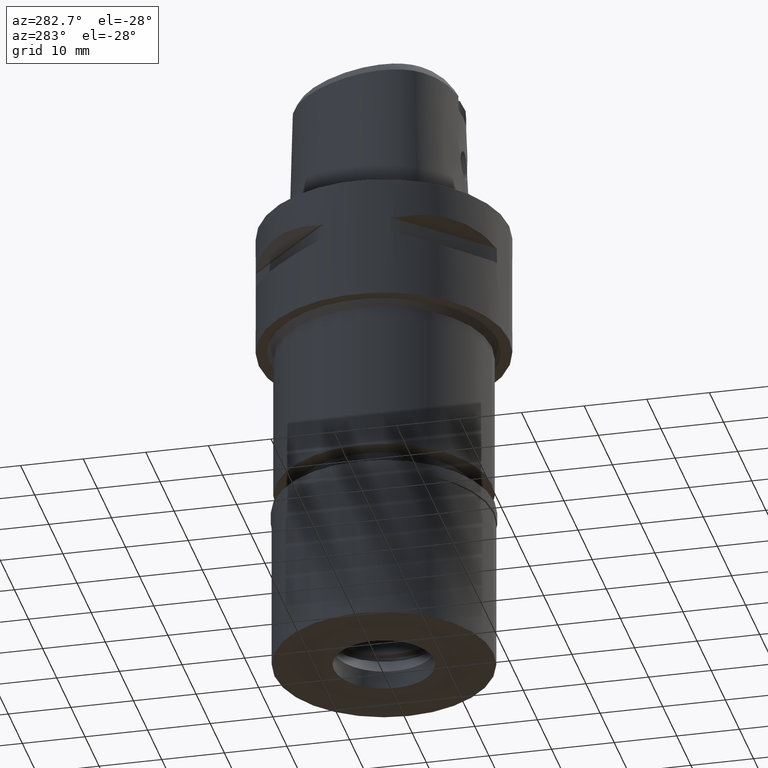
[diagram: clean part render]
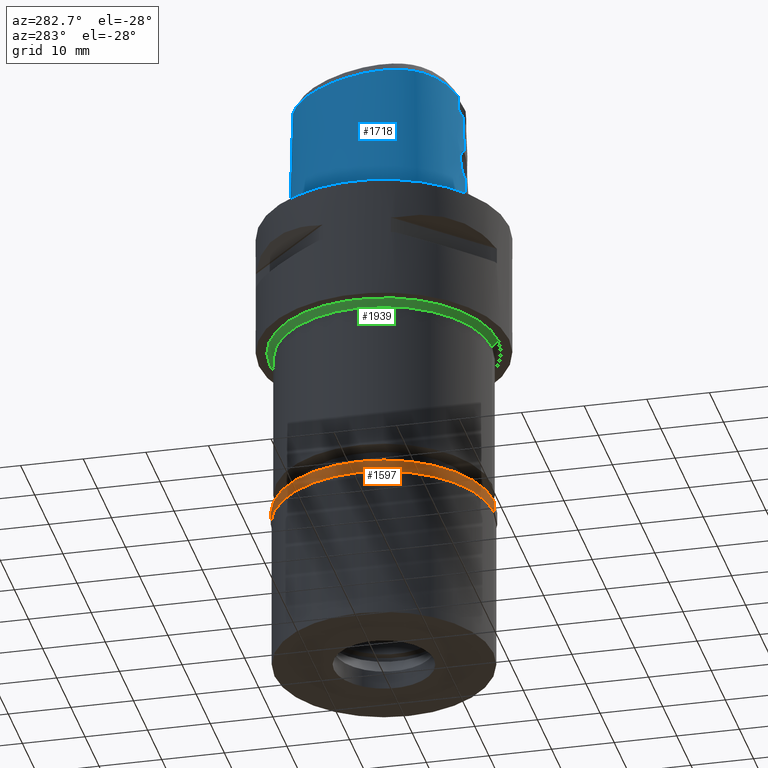
[diagram: same view with three faces highlighted in distinct colors, each labeled with its STEP entity id]
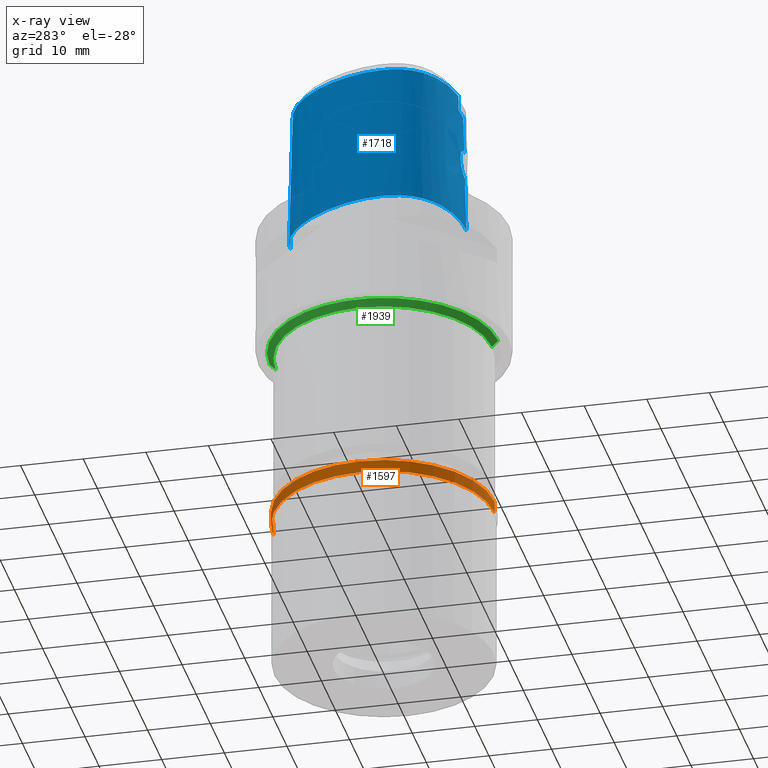
[diagram: x-ray of the same camera — body ghosted, the three highlighted faces saturated]
A machine part, auxiliary view with three faces highlighted in distinct colors.
The next image is the same camera in x-ray (body ghosted, the three faces saturated) — at least one of them is partly hidden behind the body in this view.
Their STEP definitions:

[orange] entity #1597 — the highlighted cylindrical surface (partial cylindrical patch) has radius 17.65 mm, axis along (0, 0, -1).
#65 = CARTESIAN_POINT ( 'NONE',  ( 0.0000000000000000000, 17.64999999999999858, 0.0000000000000000000 ) ) ;
#68 = LINE ( 'NONE', #2964, #1794 ) ;
#332 = EDGE_CURVE ( 'NONE', #3182, #1446, #68, .T. ) ;
#387 = DIRECTION ( 'NONE',  ( 0.0000000000000000000, 0.0000000000000000000, -1.000000000000000000 ) ) ;
#414 = ORIENTED_EDGE ( 'NONE', *, *, #4369, .T. ) ;
#703 = ORIENTED_EDGE ( 'NONE', *, *, #3760, .F. ) ;
#973 = CARTESIAN_POINT ( 'NONE',  ( 0.0000000000000000000, 0.0000000000000000000, -1.949999999999999956 ) ) ;
#1031 = CYLINDRICAL_SURFACE ( 'NONE', #2869, 17.64999999999999858 ) ;
#1371 = CARTESIAN_POINT ( 'NONE',  ( 0.0000000000000000000, -17.64999999999999858, 0.0000000000000000000 ) ) ;
#1412 = CARTESIAN_POINT ( 'NONE',  ( 0.0000000000000000000, -17.64999999999999858, -1.949999999999999956 ) ) ;
#1446 = VERTEX_POINT ( 'NONE', #3290 ) ;
#1473 = VERTEX_POINT ( 'NONE', #1412 ) ;
#1502 = CIRCLE ( 'NONE', #3487, 17.64999999999999858 ) ;
#1531 = AXIS2_PLACEMENT_3D ( 'NONE', #973, #3576, #1768 ) ;
#1597 = ADVANCED_FACE ( 'NONE', ( #4317 ), #1031, .T. ) ;
#1602 = CARTESIAN_POINT ( 'NONE',  ( 0.0000000000000000000, 0.0000000000000000000, 0.0000000000000000000 ) ) ;
#1768 = DIRECTION ( 'NONE',  ( 0.0000000000000000000, 1.000000000000000000, 0.0000000000000000000 ) ) ;
#1793 = CARTESIAN_POINT ( 'NONE',  ( 0.0000000000000000000, 0.0000000000000000000, 0.0000000000000000000 ) ) ;
#1794 = VECTOR ( 'NONE', #387, 1000.000000000000000 ) ;
#2516 = EDGE_CURVE ( 'NONE', #3165, #3182, #1502, .T. ) ;
#2640 = VECTOR ( 'NONE', #3995, 1000.000000000000000 ) ;
#2869 = AXIS2_PLACEMENT_3D ( 'NONE', #1793, #3970, #2923 ) ;
#2923 = DIRECTION ( 'NONE',  ( 0.0000000000000000000, -1.000000000000000000, 0.0000000000000000000 ) ) ;
#2964 = CARTESIAN_POINT ( 'NONE',  ( 0.0000000000000000000, 17.64999999999999858, 0.0000000000000000000 ) ) ;
#3094 = ORIENTED_EDGE ( 'NONE', *, *, #332, .T. ) ;
#3165 = VERTEX_POINT ( 'NONE', #4514 ) ;
#3182 = VERTEX_POINT ( 'NONE', #65 ) ;
#3290 = CARTESIAN_POINT ( 'NONE',  ( 0.0000000000000000000, 17.64999999999999858, -1.949999999999999956 ) ) ;
#3305 = CIRCLE ( 'NONE', #1531, 17.64999999999999858 ) ;
#3445 = DIRECTION ( 'NONE',  ( 0.0000000000000000000, -1.000000000000000000, 0.0000000000000000000 ) ) ;
#3487 = AXIS2_PLACEMENT_3D ( 'NONE', #1602, #4162, #3445 ) ;
#3575 = EDGE_LOOP ( 'NONE', ( #414, #703, #4119, #3094 ) ) ;
#3576 = DIRECTION ( 'NONE',  ( 0.0000000000000000000, 0.0000000000000000000, 1.000000000000000000 ) ) ;
#3760 = EDGE_CURVE ( 'NONE', #3165, #1473, #4722, .T. ) ;
#3970 = DIRECTION ( 'NONE',  ( 0.0000000000000000000, 0.0000000000000000000, -1.000000000000000000 ) ) ;
#3995 = DIRECTION ( 'NONE',  ( 0.0000000000000000000, 0.0000000000000000000, -1.000000000000000000 ) ) ;
#4119 = ORIENTED_EDGE ( 'NONE', *, *, #2516, .T. ) ;
#4162 = DIRECTION ( 'NONE',  ( 0.0000000000000000000, 0.0000000000000000000, -1.000000000000000000 ) ) ;
#4317 = FACE_OUTER_BOUND ( 'NONE', #3575, .T. ) ;
#4369 = EDGE_CURVE ( 'NONE', #1446, #1473, #3305, .T. ) ;
#4514 = CARTESIAN_POINT ( 'NONE',  ( 0.0000000000000000000, -17.64999999999999858, 0.0000000000000000000 ) ) ;
#4722 = LINE ( 'NONE', #1371, #2640 ) ;

[blue] entity #1718 — the highlighted face is a freeform B-spline surface patch.
#73 = CARTESIAN_POINT ( 'NONE',  ( -1.599690988516359047, -12.77714212764092494, 13.15267742123480410 ) ) ;
#103 = CARTESIAN_POINT ( 'NONE',  ( -13.62540807694999856, -0.2530731005251000143, 15.16398033745000085 ) ) ;
#113 = EDGE_CURVE ( 'NONE', #1661, #1349, #1815, .T. ) ;
#157 = CARTESIAN_POINT ( 'NONE',  ( -13.74837364124000061, -5.739794813611998947, -0.4504152575481000231 ) ) ;
#193 = CARTESIAN_POINT ( 'NONE',  ( -1.999884899135028427, -12.81476042234132073, 10.36330347219744574 ) ) ;
#204 = CARTESIAN_POINT ( 'NONE',  ( 0.2991395962793999552, 14.77459908090000162, 7.356782539951999489 ) ) ;
#207 = CARTESIAN_POINT ( 'NONE',  ( -0.5039711950883150049, 14.40001990034761015, 22.52071717950014929 ) ) ;
#223 = CARTESIAN_POINT ( 'NONE',  ( -1.284166321608999900E-14, -12.93301545397000041, 9.199999999999999289 ) ) ;
#232 = CARTESIAN_POINT ( 'NONE',  ( -4.045377554059999881, -12.93507168979999911, -0.4504152575481000231 ) ) ;
#242 = CARTESIAN_POINT ( 'NONE',  ( -2.603602034519999719, -12.50961198144999997, 20.00000000000000000 ) ) ;
#249 = CARTESIAN_POINT ( 'NONE',  ( -1.653748280665647163, -12.85457989003768198, 9.901499109432398527 ) ) ;
#255 = VERTEX_POINT ( 'NONE', #3719 ) ;
#257 = CARTESIAN_POINT ( 'NONE',  ( -7.098705624356000499, -11.85792499314999837, 7.356782539951999489 ) ) ;
#301 = CARTESIAN_POINT ( 'NONE',  ( -1.841838764608476842, -12.76497262167226943, 12.88570671879769058 ) ) ;
#321 = ORIENTED_EDGE ( 'NONE', *, *, #2840, .T. ) ;
#322 = CARTESIAN_POINT ( 'NONE',  ( -0.5074042838810917111, -12.81372059559767251, 13.74459566185631054 ) ) ;
#329 = B_SPLINE_CURVE_WITH_KNOTS ( 'NONE', 3,
 ( #3337, #3704, #3612, #322, #3239, #4694, #4341, #2506, #4719, #2902, #1082, #4013, #793, #3725, #2240, #1536, #2992, #437, #4451, #3358, #1889, #73, #2598, #4076, #301, #1318, #2461, #3143, #4578, #2829, #2106, #2082, #2771, #3866, #3592, #1013, #1759, #3896, #3221, #3535, #4301, #2359, #1292, #4245, #4605, #4677, #3950, #661, #1396, #2853, #956, #3192, #1682, #3843, #193, #1704, #2411, #4323, #3163, #986, #611, #553, #3504, #2001, #3475, #249, #3562, #1655, #4650, #4220, #3115, #2437, #2748, #929, #2380, #1373, #580, #2028, #4626, #1345, #223 ),
 .UNSPECIFIED., .F., .F.,
 ( 4, 2, 2, 1, 1, 2, 2, 2, 2, 1, 2, 1, 2, 2, 2, 2, 1, 1, 2, 2, 2, 2, 2, 2, 2, 2, 1, 1, 2, 2, 2, 2, 1, 2, 2, 2, 1, 1, 2, 2, 2, 2, 1, 1, 2, 2, 4 ),
 ( 0.0000000000000000000, 0.06250000000000464906, 0.09375000000000696665, 0.1093750000000080352, 0.1171875000000085904, 0.1210937500000090067, 0.1250000000000094369, 0.1562500000000116573, 0.1718750000000128231, 0.1875000000000139888, 0.2187500000000159317, 0.2343750000000169587, 0.2421875000000176803, 0.2500000000000183742, 0.3125000000000260347, 0.3437500000000298650, 0.3593750000000314748, 0.3671875000000318634, 0.3710937500000320299, 0.3750000000000322520, 0.4375000000000294764, 0.4687500000000284772, 0.4843750000000283107, 0.5000000000000280886, 0.5625000000000253131, 0.5937500000000238698, 0.6093750000000230926, 0.6171875000000228706, 0.6210937500000223155, 0.6250000000000218714, 0.6562500000000139888, 0.6718750000000099920, 0.6796875000000082157, 0.6835937500000076605, 0.6875000000000071054, 0.7187500000000037748, 0.7343750000000019984, 0.7421875000000011102, 0.7460937500000009992, 0.7500000000000007772, 0.8124999999999993339, 0.8437499999999986677, 0.8593749999999984457, 0.8671874999999984457, 0.8710937499999985567, 0.8749999999999985567, 1.000000000000000000 ),
 .UNSPECIFIED. ) ;
#331 = CARTESIAN_POINT ( 'NONE',  ( -1.030579248957000260, -12.61390759210000212, 22.97117813495000149 ) ) ;
#384 = CARTESIAN_POINT ( 'NONE',  ( 1.395836783632000027E-10, 14.96299999995999919, 2.777037858929000335E-13 ) ) ;
#437 = CARTESIAN_POINT ( 'NONE',  ( -1.401100016634621470, -12.78632403303350884, 13.32553592727867553 ) ) ;
#443 = ORIENTED_EDGE ( 'NONE', *, *, #4223, .F. ) ;
#470 = CARTESIAN_POINT ( 'NONE',  ( -13.22478982745999865, 2.964135532982000054, -0.4504152575481000231 ) ) ;
#489 = CARTESIAN_POINT ( 'NONE',  ( -1.513572632015000030, 14.28153444572000197, 22.97117813495000149 ) ) ;
#514 = CARTESIAN_POINT ( 'NONE',  ( -14.06716929008000072, -4.370330522713000043, -0.4504152575481000231 ) ) ;
#537 = CARTESIAN_POINT ( 'NONE',  ( -3.618945471576000106, 13.84737970577999988, 15.16398033745000085 ) ) ;
#553 = CARTESIAN_POINT ( 'NONE',  ( -1.826504515500986914, -12.83620081350063380, 10.10016303675815053 ) ) ;
#561 = CARTESIAN_POINT ( 'NONE',  ( -13.04019923957000060, 2.897436294632000031, 7.356782539951999489 ) ) ;
#563 = CARTESIAN_POINT ( 'NONE',  ( -4.736458213768032444, -12.13940339378275013, 22.52071717950015284 ) ) ;
#580 = CARTESIAN_POINT ( 'NONE',  ( -0.8945153555999346695, -12.91072944406699285, 9.381059634973375694 ) ) ;
#592 = CARTESIAN_POINT ( 'NONE',  ( -6.965032172204999483, -11.48890074392000038, 22.97117813495000149 ) ) ;
#611 = CARTESIAN_POINT ( 'NONE',  ( -1.871347986755834025, -12.83101099829895020, 10.16070205657113412 ) ) ;
#620 = CARTESIAN_POINT ( 'NONE',  ( -13.18504584477999941, -5.572791068243000190, 22.97117813495000149 ) ) ;
#644 = CARTESIAN_POINT ( 'NONE',  ( 0.8715805126931999158, -13.15757746806000128, -0.4504152575481000231 ) ) ;
#651 = ORIENTED_EDGE ( 'NONE', *, *, #113, .T. ) ;
#661 = CARTESIAN_POINT ( 'NONE',  ( -2.151849462947669878, -12.79245487688643124, 10.68743969069598165 ) ) ;
#670 = CARTESIAN_POINT ( 'NONE',  ( 0.5764111328808999568, -12.97358044667000065, 7.356782539951999489 ) ) ;
#673 = CARTESIAN_POINT ( 'NONE',  ( -11.50301490204149957, 6.641268750185789216, -1.475856378297182858E-08 ) ) ;
#684 = DIRECTION ( 'NONE',  ( 0.0000000000000000000, -0.02499051295424905769, -0.9996876883618621701 ) ) ;
#694 = CARTESIAN_POINT ( 'NONE',  ( -3.976337281254000100, -12.54865311024000185, 15.16398033745000085 ) ) ;
#715 = CARTESIAN_POINT ( 'NONE',  ( -13.21414037081528292, 2.960287500126357330, -1.475856378297182858E-08 ) ) ;
#736 = ORIENTED_EDGE ( 'NONE', *, *, #2169, .F. ) ;
#766 = CARTESIAN_POINT ( 'NONE',  ( -14.17320396628316104, -2.619206249997343861, -1.475856378297182858E-08 ) ) ;
#776 = CARTESIAN_POINT ( 'NONE',  ( -2.568703252653000479, -12.45023756080000155, 22.52071717950000007 ) ) ;
#793 = CARTESIAN_POINT ( 'NONE',  ( -1.011878398766373754, -12.80112054547332079, 13.56692882181785542 ) ) ;
#796 = CARTESIAN_POINT ( 'NONE',  ( -1.260417653605999904E-08, -12.66301535847000004, 19.99999996345999875 ) ) ;
#816 = B_SPLINE_CURVE_WITH_KNOTS ( 'NONE', 3,
 ( #4590, #3175, #563, #2421, #3545, #4287, #3853, #2013, #1328, #2784, #3908, #4181, #2091, #4565, #1303, #3880, #999, #2757, #3830, #2448, #207, #1666 ),
 .UNSPECIFIED., .F., .F.,
 ( 4, 1, 1, 1, 1, 1, 1, 1, 1, 1, 1, 1, 1, 1, 1, 1, 1, 1, 1, 4 ),
 ( 0.0000000000000000000, 0.03040433083230896158, 0.1185493916654469376, 0.1626219220819630218, 0.2066944524984792309, 0.2507669829151011331, 0.2728032481233061968, 0.2948395133315114269, 0.3168757785399280991, 0.3389120437481332737, 0.3829845741647551760, 0.4270571045811654698, 0.4711296349977873721, 0.5592746958308195682, 0.6474197566639574575, 0.7355648174969897646, 0.8237098783300219607, 0.9118549391631599610, 0.9559274695796866617, 1.000000000000000000 ),
 .UNSPECIFIED. ) ;
#825 = B_SPLINE_CURVE_WITH_KNOTS ( 'NONE', 3,
 ( #384, #2861, #2471, #2567, #4047, #4330, #673, #715, #2918, #766, #3647, #2116, #3253, #1048, #3053, #3627, #1918, #4490, #4464, #869, #1178, #3028 ),
 .UNSPECIFIED., .F., .F.,
 ( 4, 1, 1, 1, 1, 1, 1, 1, 1, 1, 1, 1, 1, 1, 1, 1, 1, 1, 1, 4 ),
 ( 0.0000000000000000000, 0.04166666667009000236, 0.08333333333660000730, 0.1666666666697000088, 0.2500000000027000069, 0.3333333333357000328, 0.4166666666688000342, 0.5000000000018000046, 0.5416666666684000209, 0.5833333333347999750, 0.6250000000013999912, 0.6458333333346000238, 0.6666666666680000075, 0.6875000000012000401, 0.7083333333343999616, 0.7500000000009999779, 0.7916666666675000741, 0.8333333333340000593, 0.9166666666671000607, 1.000000000000000000 ),
 .UNSPECIFIED. ) ;
#851 = CARTESIAN_POINT ( 'NONE',  ( -9.179411191401001702, 9.970937546856999845, -0.4504152575481000231 ) ) ;
#869 = CARTESIAN_POINT ( 'NONE',  ( -4.043386007794314452, -12.92392500037023950, -1.475856378297182858E-08 ) ) ;
#892 = CARTESIAN_POINT ( 'NONE',  ( -13.37282177692999952, -5.628458983366000368, 15.16398033745000085 ) ) ;
#915 = CARTESIAN_POINT ( 'NONE',  ( -1.594059754728999856, 14.66589044340000214, 7.356782539951999489 ) ) ;
#929 = CARTESIAN_POINT ( 'NONE',  ( -0.9848863495916158062, -12.90598536776482241, 9.421068656342164616 ) ) ;
#937 = CARTESIAN_POINT ( 'NONE',  ( -11.00320927591999975, 6.352726117801000605, 22.97117813495000149 ) ) ;
#940 = B_SPLINE_CURVE_WITH_KNOTS ( 'NONE', 3,
 ( #3404, #3386, #2668, #3753 ),
 .UNSPECIFIED., .F., .F.,
 ( 4, 4 ),
 ( 0.0000000000000000000, 1.000000000000000000 ),
 .UNSPECIFIED. ) ;
#956 = CARTESIAN_POINT ( 'NONE',  ( -2.128793241413423409, -12.79612817070244546, 10.62919246598731959 ) ) ;
#986 = CARTESIAN_POINT ( 'NONE',  ( -1.918338618982708743, -12.82521576174282885, 10.23111646875308800 ) ) ;
#996 = CARTESIAN_POINT ( 'NONE',  ( -4.010857417656999324, -12.74186240001999870, 7.356782539951999489 ) ) ;
#999 = CARTESIAN_POINT ( 'NONE',  ( -8.737913808020573825, 9.598635897784969728, 22.52071717950014929 ) ) ;
#1013 = CARTESIAN_POINT ( 'NONE',  ( -2.271431586346507547, -12.75091221571057787, 11.86913203842019549 ) ) ;
#1022 = CARTESIAN_POINT ( 'NONE',  ( 0.5813887770590999704, -13.16870179131000107, -0.4504152575481000231 ) ) ;
#1046 = CARTESIAN_POINT ( 'NONE',  ( -10.57640490942999989, -9.688930278598999024, 15.16398033745000085 ) ) ;
#1048 = CARTESIAN_POINT ( 'NONE',  ( -12.97089751524858059, -7.488751172059896710, -1.475856378297182858E-08 ) ) ;
#1070 = CARTESIAN_POINT ( 'NONE',  ( 0.8566252966744000164, -12.76751128702999871, 15.16398033745000085 ) ) ;
#1082 = CARTESIAN_POINT ( 'NONE',  ( -0.8723905964265249446, -12.80534818375293327, 13.62814720800847290 ) ) ;
#1175 = VECTOR ( 'NONE', #3287, 1000.000000000000227 ) ;
#1178 = CARTESIAN_POINT ( 'NONE',  ( -1.347795335935797922, -13.16300000036725670, -1.475856378297182858E-08 ) ) ;
#1223 = LINE ( 'NONE', #3901, #1600 ) ;
#1225 = CARTESIAN_POINT ( 'NONE',  ( -3.534957284301000424, 13.66895471518999905, 22.97117813495000149 ) ) ;
#1232 = VERTEX_POINT ( 'NONE', #796 ) ;
#1248 = CARTESIAN_POINT ( 'NONE',  ( -8.879307797841999417, 9.717869255809000961, 15.16398033745000085 ) ) ;
#1283 = CARTESIAN_POINT ( 'NONE',  ( 1.395836783632000027E-10, 14.96299999995999919, 2.777037858929000335E-13 ) ) ;
#1292 = CARTESIAN_POINT ( 'NONE',  ( -2.287734898354136348, -12.76560074340179440, 11.21901780316244590 ) ) ;
#1301 = CARTESIAN_POINT ( 'NONE',  ( 0.4366859310408000017, 14.57070303491000018, 15.16398033745000085 ) ) ;
#1303 = CARTESIAN_POINT ( 'NONE',  ( -12.68166860123848494, 2.767886241323703533, 22.52071717950014929 ) ) ;
#1307 = VERTEX_POINT ( 'NONE', #242 ) ;
#1318 = CARTESIAN_POINT ( 'NONE',  ( -1.965252258605612035, -12.75916002378914982, 12.69725596527201539 ) ) ;
#1326 = CARTESIAN_POINT ( 'NONE',  ( -11.84499494117000040, -9.036543427211999102, -0.4504152575481000231 ) ) ;
#1328 = CARTESIAN_POINT ( 'NONE',  ( -12.48241503205551872, -7.206725678149811465, 22.52071717950014929 ) ) ;
#1345 = CARTESIAN_POINT ( 'NONE',  ( -0.2871975164134053515, -12.93301545396999863, 9.199999999999999289 ) ) ;
#1349 = VERTEX_POINT ( 'NONE', #1283 ) ;
#1356 = CARTESIAN_POINT ( 'NONE',  ( -11.41870158527999912, -8.632189118438001074, 22.97117813495000149 ) ) ;
#1373 = CARTESIAN_POINT ( 'NONE',  ( -0.9094609401185417275, -12.90997073725080924, 9.387431234174387740 ) ) ;
#1396 = CARTESIAN_POINT ( 'NONE',  ( -2.140846386073652408, -12.79421935293861523, 10.65923901443732191 ) ) ;
#1402 = CARTESIAN_POINT ( 'NONE',  ( -13.17288117603999886, -6.685476030735999942, 7.356782539951999489 ) ) ;
#1428 = CARTESIAN_POINT ( 'NONE',  ( -12.64198530904999984, -7.298853620770000994, 15.16398033745000085 ) ) ;
#1460 = EDGE_CURVE ( 'NONE', #1232, #1307, #1572, .T. ) ;
#1536 = CARTESIAN_POINT ( 'NONE',  ( -1.214948594906910095, -12.79380401828840874, 13.45328328240799287 ) ) ;
#1564 = CARTESIAN_POINT ( 'NONE',  ( -13.43219831688000099, -0.2874481126765999761, 22.97117813495000149 ) ) ;
#1572 = B_SPLINE_CURVE_WITH_KNOTS ( 'NONE', 3,
 ( #3006, #4089, #3609, #4466 ),
 .UNSPECIFIED., .F., .F.,
 ( 4, 4 ),
 ( 0.0000000000000000000, 1.000000000000000000 ),
 .UNSPECIFIED. ) ;
#1590 = CARTESIAN_POINT ( 'NONE',  ( -13.87311579039999820, -4.342650420686999801, 7.356782539951999489 ) ) ;
#1600 = VECTOR ( 'NONE', #684, 1000.000000000000000 ) ;
#1614 = CARTESIAN_POINT ( 'NONE',  ( -1.634303316085999880, 14.85806844224000045, -0.4504152575481000231 ) ) ;
#1636 = CARTESIAN_POINT ( 'NONE',  ( 0.2912660335118000265, 14.57955089586999975, 15.16398033745000085 ) ) ;
#1655 = CARTESIAN_POINT ( 'NONE',  ( -1.635013697133319344, -12.85646650681847447, 9.882332749081344403 ) ) ;
#1661 = VERTEX_POINT ( 'NONE', #2503 ) ;
#1663 = CARTESIAN_POINT ( 'NONE',  ( -0.3913005302951000353, 14.99062903893999987, -0.4504152575481000231 ) ) ;
#1666 = CARTESIAN_POINT ( 'NONE',  ( -6.591076720877999095E-11, 14.40001989798000182, 22.52071729252999788 ) ) ;
#1682 = CARTESIAN_POINT ( 'NONE',  ( -2.071380972957955979, -12.80488926460895271, 10.49747195909083430 ) ) ;
#1689 = CARTESIAN_POINT ( 'NONE',  ( -10.69740340723999950, -9.843145490978999490, 7.356782539951999489 ) ) ;
#1704 = CARTESIAN_POINT ( 'NONE',  ( -1.969151562591274551, -12.81878448191199205, 10.31136768718370256 ) ) ;
#1718 = ADVANCED_FACE ( 'NONE', ( #3391 ), #4230, .T. ) ;
#1759 = CARTESIAN_POINT ( 'NONE',  ( -2.282166019910153665, -12.75165090099520526, 11.79525896608642910 ) ) ;
#1784 = CARTESIAN_POINT ( 'NONE',  ( 0.5664558445245999607, -12.58333775740000071, 22.97117813495000149 ) ) ;
#1815 = LINE ( 'NONE', #3630, #1175 ) ;
#1851 = EDGE_CURVE ( 'NONE', #1232, #255, #940, .T. ) ;
#1889 = CARTESIAN_POINT ( 'NONE',  ( -1.572442839314114105, -12.77847914798856088, 13.17862367268234181 ) ) ;
#1918 = CARTESIAN_POINT ( 'NONE',  ( -10.81142122272220263, -9.988463672166119522, -1.475856378297182858E-08 ) ) ;
#1935 = CARTESIAN_POINT ( 'NONE',  ( -6.258002244012000226, 12.52314194093999866, 7.356782539951999489 ) ) ;
#1950 = ORIENTED_EDGE ( 'NONE', *, *, #2953, .T. ) ;
#1960 = VERTEX_POINT ( 'NONE', #2267 ) ;
#1962 = CARTESIAN_POINT ( 'NONE',  ( -0.3608217480104999875, 14.40386531650999835, 22.97117813495000149 ) ) ;
#1989 = CARTESIAN_POINT ( 'NONE',  ( -6.014684104908999629, 12.21358555026999859, 22.97117813495000149 ) ) ;
#2001 = CARTESIAN_POINT ( 'NONE',  ( -1.718104249315451693, -12.84797894397791218, 9.970099457365208195 ) ) ;
#2009 = CARTESIAN_POINT ( 'NONE',  ( -14.01182759709000081, -0.1843230762220000041, -0.4504152575481000231 ) ) ;
#2013 = CARTESIAN_POINT ( 'NONE',  ( -12.06912915253542984, -7.841969072900722537, 22.52071717950014929 ) ) ;
#2023 = ORIENTED_EDGE ( 'NONE', *, *, #1460, .T. ) ;
#2028 = CARTESIAN_POINT ( 'NONE',  ( -0.8887228227232624178, -12.91102071392065831, 9.378616401567338556 ) ) ;
#2037 = CARTESIAN_POINT ( 'NONE',  ( -10.45540641161999851, -9.534715066219000335, 22.97117813495000149 ) ) ;
#2066 = CARTESIAN_POINT ( 'NONE',  ( -12.47264437136999859, -7.201084584558000046, 22.97117813495000149 ) ) ;
#2082 = CARTESIAN_POINT ( 'NONE',  ( -2.117617568217389667, -12.75277667900067868, 12.39764604230459177 ) ) ;
#2090 = CARTESIAN_POINT ( 'NONE',  ( -12.53434584160000043, -8.180300366378000732, -0.4504152575481000231 ) ) ;
#2091 = CARTESIAN_POINT ( 'NONE',  ( -13.60847657048322823, -2.623199557594021236, 22.52071717950014929 ) ) ;
#2106 = CARTESIAN_POINT ( 'NONE',  ( -2.110909525984960844, -12.75302106767308530, 12.41330912378776929 ) ) ;
#2116 = CARTESIAN_POINT ( 'NONE',  ( -13.73754041474015075, -5.736583203229367989, -1.475856378297182858E-08 ) ) ;
#2138 = CARTESIAN_POINT ( 'NONE',  ( -13.35152084862000166, -6.764911735362999501, -0.4504152575481000231 ) ) ;
#2164 = VERTEX_POINT ( 'NONE', #776 ) ;
#2169 = EDGE_CURVE ( 'NONE', #255, #4302, #329, .T. ) ;
#2240 = CARTESIAN_POINT ( 'NONE',  ( -1.150408608482918149, -12.79622784198479657, 13.49197783700753739 ) ) ;
#2267 = CARTESIAN_POINT ( 'NONE',  ( -1.399837041540999886E-14, -13.16299999999999848, 2.770746595122999794E-13 ) ) ;
#2295 = CARTESIAN_POINT ( 'NONE',  ( -13.81861783701999791, -0.2186980883734999936, 7.356782539951999489 ) ) ;
#2318 = CARTESIAN_POINT ( 'NONE',  ( -13.67906229072000102, -4.314970318659999471, 15.16398033745000085 ) ) ;
#2330 = EDGE_LOOP ( 'NONE', ( #3729, #736, #2457, #2023, #443, #321, #651, #1950 ) ) ;
#2359 = CARTESIAN_POINT ( 'NONE',  ( -2.300143802991292841, -12.76057655722843620, 11.36375986572100061 ) ) ;
#2367 = CARTESIAN_POINT ( 'NONE',  ( -8.729256101062000894, 9.591335110284999743, 22.97117813495000149 ) ) ;
#2380 = CARTESIAN_POINT ( 'NONE',  ( -0.9319488030645941556, -12.90881411230990494, 9.397158616747541160 ) ) ;
#2411 = CARTESIAN_POINT ( 'NONE',  ( -1.953201304415306705, -12.82084256532890443, 10.28519075025628560 ) ) ;
#2421 = CARTESIAN_POINT ( 'NONE',  ( -6.968888528386538717, -11.49954675419207639, 22.52071717950014929 ) ) ;
#2437 = CARTESIAN_POINT ( 'NONE',  ( -1.123943696502145650, -12.89774608795620203, 9.492107695864113737 ) ) ;
#2446 = CARTESIAN_POINT ( 'NONE',  ( 0.5714334887027999743, -12.77845910204000113, 15.16398033745000085 ) ) ;
#2448 = CARTESIAN_POINT ( 'NONE',  ( -1.515894611548149307, 14.29262276282158162, 22.52071717950014929 ) ) ;
#2457 = ORIENTED_EDGE ( 'NONE', *, *, #1851, .F. ) ;
#2461 = CARTESIAN_POINT ( 'NONE',  ( -2.002296320555181808, -12.75747848527826456, 12.63397802741203613 ) ) ;
#2471 = CARTESIAN_POINT ( 'NONE',  ( -1.631981572237633404, 14.84698125036252492, -1.475856378297182858E-08 ) ) ;
#2493 = CARTESIAN_POINT ( 'NONE',  ( -7.165542350431000074, -12.04243711776999959, -0.4504152575481000231 ) ) ;
#2503 = CARTESIAN_POINT ( 'NONE',  ( -6.591076720877999095E-11, 14.40001989798000182, 22.52071729252999788 ) ) ;
#2506 = CARTESIAN_POINT ( 'NONE',  ( -0.8152708980165712660, -12.80693898155979049, 13.65082120268139221 ) ) ;
#2523 = CARTESIAN_POINT ( 'NONE',  ( -2.603602034519999719, -12.50961198144999997, 20.00000000000000000 ) ) ;
#2567 = CARTESIAN_POINT ( 'NONE',  ( -3.782076373942980574, 14.19393593783074081, -1.475856378297182858E-08 ) ) ;
#2598 = CARTESIAN_POINT ( 'NONE',  ( -1.611877499992751428, -12.77653505885875340, 13.14081569331371924 ) ) ;
#2668 = CARTESIAN_POINT ( 'NONE',  ( -4.220860006602711409E-09, -12.76635998233995473, 15.86666680636471227 ) ) ;
#2678 = CARTESIAN_POINT ( 'NONE',  ( -11.51281501202999991, 6.646926448670999577, -0.4504152575481000231 ) ) ;
#2701 = CARTESIAN_POINT ( 'NONE',  ( -6.379661313562999148, 12.67792013627000181, -0.4504152575481000231 ) ) ;
#2730 = CARTESIAN_POINT ( 'NONE',  ( 0.4485687404491999764, 14.76550224050000004, 7.356782539951999489 ) ) ;
#2748 = CARTESIAN_POINT ( 'NONE',  ( -1.030987739345192056, -12.90333795298390918, 9.443720710652691253 ) ) ;
#2755 = CARTESIAN_POINT ( 'NONE',  ( 0.3070131590471000260, 14.96964726592999995, -0.4504152575481000231 ) ) ;
#2757 = CARTESIAN_POINT ( 'NONE',  ( -6.021703609490611342, 12.22251596750342628, 22.52071717950014929 ) ) ;
#2771 = CARTESIAN_POINT ( 'NONE',  ( -2.120426573750170185, -12.75267573305423774, 12.39100281169534590 ) ) ;
#2781 = CARTESIAN_POINT ( 'NONE',  ( -11.56079937057999985, -8.766973888030001660, 15.16398033745000085 ) ) ;
#2784 = CARTESIAN_POINT ( 'NONE',  ( -12.82590901148826745, -6.531187915556420975, 22.52071717950014929 ) ) ;
#2829 = CARTESIAN_POINT ( 'NONE',  ( -2.100682809757366432, -12.75339965040591750, 12.43682748920701542 ) ) ;
#2840 = EDGE_CURVE ( 'NONE', #2164, #1661, #816, .T. ) ;
#2842 = CARTESIAN_POINT ( 'NONE',  ( -2.580556340274079208, -12.46988384530705041, 21.68047811966666671 ) ) ;
#2853 = CARTESIAN_POINT ( 'NONE',  ( -2.133369772113715257, -12.79540785461998809, 10.64044447588278430 ) ) ;
#2859 = CARTESIAN_POINT ( 'NONE',  ( -12.81560183090000038, -6.526604621482000823, 22.97117813495000149 ) ) ;
#2861 = CARTESIAN_POINT ( 'NONE',  ( -0.5439938573669350630, 14.96300000037487443, -1.475856378297182858E-08 ) ) ;
#2888 = CARTESIAN_POINT ( 'NONE',  ( -11.70289715588000057, -8.901758657620998605, 7.356782539951999489 ) ) ;
#2902 = CARTESIAN_POINT ( 'NONE',  ( -0.8618360501669412033, -12.80564904629979495, 13.63244908506613662 ) ) ;
#2918 = CARTESIAN_POINT ( 'NONE',  ( -14.00068088052812421, -0.1863062499349895373, -1.475856378297182858E-08 ) ) ;
#2953 = EDGE_CURVE ( 'NONE', #1349, #1960, #825, .T. ) ;
#2992 = CARTESIAN_POINT ( 'NONE',  ( -1.310334703300464643, -12.79012657991068203, 13.39286631455621546 ) ) ;
#3006 = CARTESIAN_POINT ( 'NONE',  ( -1.260417653605999904E-08, -12.66301535847000004, 19.99999996345999875 ) ) ;
#3028 = CARTESIAN_POINT ( 'NONE',  ( -1.399837041540999886E-14, -13.16299999999999848, 2.770746595122999794E-13 ) ) ;
#3029 = CARTESIAN_POINT ( 'NONE',  ( -14.18449853673999961, -2.619126383685999926, -0.4504152575481000231 ) ) ;
#3053 = CARTESIAN_POINT ( 'NONE',  ( -12.52522392788794470, -8.173666406467122059, -1.475856378297182858E-08 ) ) ;
#3055 = CARTESIAN_POINT ( 'NONE',  ( -3.702933658851999876, 14.02580469636999894, 7.356782539951999489 ) ) ;
#3074 = CARTESIAN_POINT ( 'NONE',  ( -3.786921846127000002, 14.20422968694999888, -0.4504152575481000231 ) ) ;
#3097 = CARTESIAN_POINT ( 'NONE',  ( -11.34294643333000074, 6.548859671713999298, 7.356782539951999489 ) ) ;
#3115 = CARTESIAN_POINT ( 'NONE',  ( -1.186927697903354284, -12.89362213064987905, 9.528479479260461460 ) ) ;
#3125 = CARTESIAN_POINT ( 'NONE',  ( -0.3709813421054000138, 14.59945322398999856, 15.16398033745000085 ) ) ;
#3143 = CARTESIAN_POINT ( 'NONE',  ( -2.052152098439465000, -12.75534016868717835, 12.53920447716560105 ) ) ;
#3150 = CARTESIAN_POINT ( 'NONE',  ( -9.070417877503999193, -10.46386435539999837, 22.97117813495000149 ) ) ;
#3163 = CARTESIAN_POINT ( 'NONE',  ( -1.924883428630889126, -12.82440318964656889, 10.24105807494909648 ) ) ;
#3172 = CARTESIAN_POINT ( 'NONE',  ( -9.167104997090000040, -10.63410053035999958, 15.16398033745000085 ) ) ;
#3175 = CARTESIAN_POINT ( 'NONE',  ( -3.014424021963602041, -12.39773933600671008, 22.52071717950015284 ) ) ;
#3192 = CARTESIAN_POINT ( 'NONE',  ( -2.100781098110155565, -12.80050632932168853, 10.56139995706970147 ) ) ;
#3221 = CARTESIAN_POINT ( 'NONE',  ( -2.295509092785640082, -12.75393387474880669, 11.64825047697175364 ) ) ;
#3239 = CARTESIAN_POINT ( 'NONE',  ( -0.5819386986818497753, -12.81237603767194599, 13.72652564638335093 ) ) ;
#3249 = CARTESIAN_POINT ( 'NONE',  ( -12.99424150347000051, -6.606040326108999494, 15.16398033745000085 ) ) ;
#3253 = CARTESIAN_POINT ( 'NONE',  ( -13.34121471400117187, -6.760328906400068227, -1.475856378297182858E-08 ) ) ;
#3254 = CARTESIAN_POINT ( 'NONE',  ( -2.592184028741372881, -12.48966611859522047, 20.84023905983333336 ) ) ;
#3287 = DIRECTION ( 'NONE',  ( 9.121835001823147445E-12, 0.02499051293209040084, -0.9996876883624159493 ) ) ;
#3337 = CARTESIAN_POINT ( 'NONE',  ( 0.0000000000000000000, -12.81802318095999915, 13.79999999999999893 ) ) ;
#3358 = CARTESIAN_POINT ( 'NONE',  ( -1.531093129367631311, -12.78047425280173321, 13.21704160996870492 ) ) ;
#3386 = CARTESIAN_POINT ( 'NONE',  ( -4.211145200785348849E-09, -12.71469678372536727, 17.93333361272958371 ) ) ;
#3391 = FACE_OUTER_BOUND ( 'NONE', #2330, .T. ) ;
#3404 = CARTESIAN_POINT ( 'NONE',  ( -1.260417653605999904E-08, -12.66301535847000004, 19.99999996345999875 ) ) ;
#3413 = CARTESIAN_POINT ( 'NONE',  ( -11.17307785462999803, 6.450792894758000884, 15.16398033745000085 ) ) ;
#3439 = CARTESIAN_POINT ( 'NONE',  ( -13.48500879104999939, -4.287290216634000117, 22.97117813495000149 ) ) ;
#3462 = CARTESIAN_POINT ( 'NONE',  ( -9.029359494620999627, 9.844403401333000403, 7.356782539951999489 ) ) ;
#3475 = CARTESIAN_POINT ( 'NONE',  ( -1.673318493212271107, -12.85259581698450226, 9.921828725747491973 ) ) ;
#3485 = CARTESIAN_POINT ( 'NONE',  ( 0.4604515498574999754, 14.96030144608999990, -0.4504152575481000231 ) ) ;
#3504 = CARTESIAN_POINT ( 'NONE',  ( -1.754951805176105051, -12.84404327703086857, 10.01286862426010060 ) ) ;
#3515 = CARTESIAN_POINT ( 'NONE',  ( -12.98066718441000056, -7.494391693195000315, -0.4504152575481000231 ) ) ;
#3535 = CARTESIAN_POINT ( 'NONE',  ( -2.299064434898544729, -12.75538865175285252, 11.57511939275938850 ) ) ;
#3545 = CARTESIAN_POINT ( 'NONE',  ( -9.075996546496135409, -10.47368666963023109, 22.52071717950014929 ) ) ;
#3562 = CARTESIAN_POINT ( 'NONE',  ( -1.640618828100756321, -12.85590380833830970, 9.888026571611275628 ) ) ;
#3592 = CARTESIAN_POINT ( 'NONE',  ( -2.227964660006181319, -12.74977029743578250, 12.09060403548146923 ) ) ;
#3597 = CARTESIAN_POINT ( 'NONE',  ( -7.031868898279999947, -11.67341286853999982, 15.16398033745000085 ) ) ;
#3609 = CARTESIAN_POINT ( 'NONE',  ( -1.745769949806668775, -12.61172391797750159, 19.99999964621426685 ) ) ;
#3612 = CARTESIAN_POINT ( 'NONE',  ( -0.2855776774823178266, -12.81694753461941794, 13.78716430547175342 ) ) ;
#3624 = CARTESIAN_POINT ( 'NONE',  ( -1.057767381982000154, -13.20004107868999910, -0.4504152575481000231 ) ) ;
#3627 = CARTESIAN_POINT ( 'NONE',  ( -11.83679699228726356, -9.028767383067311414, -1.475856378297182858E-08 ) ) ;
#3630 = CARTESIAN_POINT ( 'NONE',  ( -6.591076720877999095E-11, 14.40001989798000182, 22.52071729252999788 ) ) ;
#3647 = CARTESIAN_POINT ( 'NONE',  ( -14.05597389623452820, -4.368733593802287096, -1.475856378297182858E-08 ) ) ;
#3704 = CARTESIAN_POINT ( 'NONE',  ( -0.1401305126056105743, -12.81802318096000270, 13.80000000000000249 ) ) ;
#3719 = CARTESIAN_POINT ( 'NONE',  ( 0.0000000000000000000, -12.81802318095999915, 13.79999999999999893 ) ) ;
#3725 = CARTESIAN_POINT ( 'NONE',  ( -1.115229725332413269, -12.79751522695110211, 13.51191098754960507 ) ) ;
#3729 = ORIENTED_EDGE ( 'NONE', *, *, #3997, .F. ) ;
#3753 = CARTESIAN_POINT ( 'NONE',  ( 0.0000000000000000000, -12.81802318095999915, 13.79999999999999893 ) ) ;
#3781 = CARTESIAN_POINT ( 'NONE',  ( -13.59718085373999941, -2.623279432011000001, 22.97117813495000149 ) ) ;
#3830 = CARTESIAN_POINT ( 'NONE',  ( -3.539803248252178403, 13.67924950902281900, 22.52071717950014929 ) ) ;
#3843 = CARTESIAN_POINT ( 'NONE',  ( -2.018817522271043163, -12.81220052564507483, 10.39736850500416132 ) ) ;
#3851 = CARTESIAN_POINT ( 'NONE',  ( -0.3811409362001999535, 14.79504113147000055, 7.356782539951999489 ) ) ;
#3853 = CARTESIAN_POINT ( 'NONE',  ( -11.42690036617345228, -8.639965951773763919, 22.52071717950014929 ) ) ;
#3866 = CARTESIAN_POINT ( 'NONE',  ( -2.183922617254193899, -12.75044120202473685, 12.23808364787375247 ) ) ;
#3875 = CARTESIAN_POINT ( 'NONE',  ( 0.8491476886650000111, -12.57247819652000054, 22.97117813495000149 ) ) ;
#3880 = CARTESIAN_POINT ( 'NONE',  ( -11.01301038052260495, 6.358384390486248705, 22.52071717950014929 ) ) ;
#3896 = CARTESIAN_POINT ( 'NONE',  ( -2.292850093586978666, -12.75329599771171907, 11.68494147239040259 ) ) ;
#3901 = CARTESIAN_POINT ( 'NONE',  ( -1.284166321608999900E-14, -12.93301545397000041, 9.199999999999999289 ) ) ;
#3904 = CARTESIAN_POINT ( 'NONE',  ( 0.8641029046838000216, -12.96254437754000044, 7.356782539951999489 ) ) ;
#3908 = CARTESIAN_POINT ( 'NONE',  ( -13.19588017074442732, -5.576003004572092969, 22.52071717950014929 ) ) ;
#3930 = CARTESIAN_POINT ( 'NONE',  ( -10.81840190505999999, -9.997360703357998091, -0.4504152575481000231 ) ) ;
#3934 = CARTESIAN_POINT ( 'NONE',  ( -1.284166321608999900E-14, -12.93301545397000041, 9.199999999999999289 ) ) ;
#3950 = CARTESIAN_POINT ( 'NONE',  ( -2.176051754930679483, -12.78846570138717098, 10.75327920937323789 ) ) ;
#3957 = CARTESIAN_POINT ( 'NONE',  ( -1.039641959964999973, -12.80928542096000022, 15.16398033745000085 ) ) ;
#3980 = CARTESIAN_POINT ( 'NONE',  ( -12.81132624673000109, -7.396622656983000255, 7.356782539951999489 ) ) ;
#3997 = EDGE_CURVE ( 'NONE', #4302, #1960, #1223, .T. ) ;
#4013 = CARTESIAN_POINT ( 'NONE',  ( -0.9448229129271796811, -12.80325335383371410, 13.59813410706257741 ) ) ;
#4046 = B_SPLINE_CURVE_WITH_KNOTS ( 'NONE', 3,
 ( #4684, #2842, #3254, #2523 ),
 .UNSPECIFIED., .F., .F.,
 ( 4, 4 ),
 ( 0.0000000000000000000, 1.000000000000000000 ),
 .UNSPECIFIED. ) ;
#4047 = CARTESIAN_POINT ( 'NONE',  ( -6.372642521318883091, 12.66899062529355291, -1.475856378297182858E-08 ) ) ;
#4076 = CARTESIAN_POINT ( 'NONE',  ( -1.743097972661440620, -12.76987166339498891, 13.00957715264290115 ) ) ;
#4089 = CARTESIAN_POINT ( 'NONE',  ( -0.8728571771472860563, -12.66303360443665582, 19.99999964621426685 ) ) ;
#4135 = CARTESIAN_POINT ( 'NONE',  ( -13.79295341473999947, -2.621895082569000390, 15.16398033745000085 ) ) ;
#4154 = CARTESIAN_POINT ( 'NONE',  ( 0.2833924707441000113, 14.38450271082999876, 22.97117813495000149 ) ) ;
#4178 = CARTESIAN_POINT ( 'NONE',  ( -13.56059770908999873, -5.684126898489000546, 7.356782539951999489 ) ) ;
#4181 = CARTESIAN_POINT ( 'NONE',  ( -13.49620532111585902, -4.288887307617089917, 22.52071717950014929 ) ) ;
#4204 = CARTESIAN_POINT ( 'NONE',  ( 0.4248031216325000581, 14.37590382932000033, 22.97117813495000149 ) ) ;
#4220 = CARTESIAN_POINT ( 'NONE',  ( -1.376879184711237158, -12.88006211686740521, 9.651496333328504207 ) ) ;
#4223 = EDGE_CURVE ( 'NONE', #2164, #1307, #4046, .T. ) ;
#4228 = CARTESIAN_POINT ( 'NONE',  ( -1.553816193372000054, 14.47371244456000028, 15.16398033745000085 ) ) ;
#4230 = B_SPLINE_SURFACE_WITH_KNOTS ( 'NONE', 3, 3, ( 
 ( #3485, #2730, #1301, #4204 ),
 ( #2755, #204, #1636, #4154 ),
 ( #1663, #3851, #3125, #1962 ),
 ( #1614, #915, #4228, #489 ),
 ( #3074, #3055, #537, #1225 ),
 ( #2701, #1935, #4515, #1989 ),
 ( #851, #3462, #1248, #2367 ),
 ( #2678, #3097, #3413, #937 ),
 ( #470, #561, #4537, #4562 ),
 ( #2009, #2295, #103, #1564 ),
 ( #3029, #4491, #4135, #3781 ),
 ( #514, #1590, #2318, #3439 ),
 ( #157, #4178, #892, #620 ),
 ( #2138, #1402, #3249, #2859 ),
 ( #3515, #3980, #1428, #2066 ),
 ( #2090, #4611, #4705, #4285 ),
 ( #1326, #2888, #2781, #1356 ),
 ( #3930, #1689, #1046, #2037 ),
 ( #4328, #4681, #3172, #3150 ),
 ( #2493, #257, #3597, #592 ),
 ( #232, #996, #694, #4350 ),
 ( #3624, #4257, #3957, #331 ),
 ( #1022, #670, #2446, #1784 ),
 ( #644, #3904, #1070, #3875 ) ),
 .UNSPECIFIED., .F., .F., .F.,
 ( 4, 1, 1, 1, 1, 1, 1, 1, 1, 1, 1, 1, 1, 1, 1, 1, 1, 1, 1, 1, 1, 4 ),
 ( 4, 4 ),
 ( -0.01174028709088000000, 0.0000000000000000000, 0.04166666667009000236, 0.08333333333660000730, 0.1666666666697000088, 0.2500000000027000069, 0.3333333333357000328, 0.4166666666688000342, 0.5000000000018000046, 0.5416666666684000209, 0.5833333333347999750, 0.6250000000013999912, 0.6458333333346000238, 0.6666666666680000075, 0.6875000000012000401, 0.7083333333343999616, 0.7500000000009999779, 0.7916666666675000741, 0.8333333333340000593, 0.9166666666671000607, 1.000000000000000000, 1.017964572395999800 ),
 ( -3.458832255331999974E-08, 1.000001764003999982 ),
 .UNSPECIFIED. ) ;
#4245 = CARTESIAN_POINT ( 'NONE',  ( -2.245603534414450930, -12.77547641080668406, 10.99707330927152427 ) ) ;
#4257 = CARTESIAN_POINT ( 'NONE',  ( -1.048704670973999997, -13.00466324982999922, 7.356782539951999489 ) ) ;
#4285 = CARTESIAN_POINT ( 'NONE',  ( -12.06000631304000059, -7.835334439708999454, 22.97117813495000149 ) ) ;
#4287 = CARTESIAN_POINT ( 'NONE',  ( -10.46238780242694766, -9.543613000370973154, 22.52071717950014929 ) ) ;
#4301 = CARTESIAN_POINT ( 'NONE',  ( -2.299962475646547322, -12.75624581463247331, 11.53706806114474936 ) ) ;
#4302 = VERTEX_POINT ( 'NONE', #3934 ) ;
#4323 = CARTESIAN_POINT ( 'NONE',  ( -1.936335331577908603, -12.82296972919318456, 10.25874399572378337 ) ) ;
#4328 = CARTESIAN_POINT ( 'NONE',  ( -9.360479236260999869, -10.97457288028000022, -0.4504152575481000231 ) ) ;
#4330 = CARTESIAN_POINT ( 'NONE',  ( -9.170754363024274269, 9.963637500239041600, -1.475856378297182858E-08 ) ) ;
#4341 = CARTESIAN_POINT ( 'NONE',  ( -0.7499755959852826281, -12.80864488942805401, 13.67492269767373969 ) ) ;
#4350 = CARTESIAN_POINT ( 'NONE',  ( -3.941817144849999455, -12.35544382047000056, 22.97117813495000149 ) ) ;
#4451 = CARTESIAN_POINT ( 'NONE',  ( -1.488347988393550869, -12.78243808049003505, 13.25392016210674306 ) ) ;
#4464 = CARTESIAN_POINT ( 'NONE',  ( -7.161686385591480963, -12.03179218785227178, -1.475856378297182858E-08 ) ) ;
#4466 = CARTESIAN_POINT ( 'NONE',  ( -2.603602034519999719, -12.50961198144999997, 20.00000000000000000 ) ) ;
#4490 = CARTESIAN_POINT ( 'NONE',  ( -9.354901133390740142, -10.96475156281565511, -1.475856378297182858E-08 ) ) ;
#4491 = CARTESIAN_POINT ( 'NONE',  ( -13.98872597573999954, -2.620510733127999980, 7.356782539951999489 ) ) ;
#4515 = CARTESIAN_POINT ( 'NONE',  ( -6.136343174460000327, 12.36836374561000085, 15.16398033745000085 ) ) ;
#4537 = CARTESIAN_POINT ( 'NONE',  ( -12.85560865166999811, 2.830737056282000008, 15.16398033745000085 ) ) ;
#4562 = CARTESIAN_POINT ( 'NONE',  ( -12.67101806378000184, 2.764037817930999896, 22.97117813495000149 ) ) ;
#4565 = CARTESIAN_POINT ( 'NONE',  ( -13.44334616472257160, -0.2854647376912339829, 22.52071717950014929 ) ) ;
#4578 = CARTESIAN_POINT ( 'NONE',  ( -2.075653757163897328, -12.75436700818544011, 12.49185155364052235 ) ) ;
#4590 = CARTESIAN_POINT ( 'NONE',  ( -2.568703252653000479, -12.45023756080000155, 22.52071717950000007 ) ) ;
#4605 = CARTESIAN_POINT ( 'NONE',  ( -2.227644355449671654, -12.77915819796579733, 10.92230603779528586 ) ) ;
#4611 = CARTESIAN_POINT ( 'NONE',  ( -12.37623266541000078, -8.065311724154998529, 7.356782539951999489 ) ) ;
#4626 = CARTESIAN_POINT ( 'NONE',  ( -0.5889969291364981485, -12.92583349803551940, 9.254553718820245578 ) ) ;
#4650 = CARTESIAN_POINT ( 'NONE',  ( -1.505001200657008598, -12.86943791852772279, 9.752156969249726970 ) ) ;
#4677 = CARTESIAN_POINT ( 'NONE',  ( -2.194313938148277909, -12.78526572574067899, 10.80969661529741899 ) ) ;
#4681 = CARTESIAN_POINT ( 'NONE',  ( -9.263792116675000798, -10.80433670531999901, 7.356782539951999489 ) ) ;
#4684 = CARTESIAN_POINT ( 'NONE',  ( -2.568703252653000479, -12.45023756080000155, 22.52071717950000007 ) ) ;
#4694 = CARTESIAN_POINT ( 'NONE',  ( -0.6939323844612987902, -12.80995583340564181, 13.69316554814096421 ) ) ;
#4705 = CARTESIAN_POINT ( 'NONE',  ( -12.21811948923000024, -7.950323081931999880, 15.16398033745000085 ) ) ;
#4719 = CARTESIAN_POINT ( 'NONE',  ( -0.8432163855915284500, -12.80617006249601708, 13.63988004449705294 ) ) ;

[green] entity #1939 — the highlighted conical surface has half-angle 45 deg.
#37 = CARTESIAN_POINT ( 'NONE',  ( 0.0000000000000000000, -17.25000000000000000, -21.00000000000000000 ) ) ;
#60 = CIRCLE ( 'NONE', #1052, 18.25000000000000000 ) ;
#111 = EDGE_LOOP ( 'NONE', ( #2186, #931, #1487, #2999 ) ) ;
#200 = VECTOR ( 'NONE', #1934, 1000.000000000000000 ) ;
#265 = CARTESIAN_POINT ( 'NONE',  ( 0.0000000000000000000, -18.25000000000000000, -20.00000000000000000 ) ) ;
#429 = LINE ( 'NONE', #2273, #200 ) ;
#517 = CIRCLE ( 'NONE', #2578, 17.25000000000000000 ) ;
#674 = CARTESIAN_POINT ( 'NONE',  ( 0.0000000000000000000, 17.25000000000000000, -21.00000000000000000 ) ) ;
#874 = AXIS2_PLACEMENT_3D ( 'NONE', #4458, #4146, #1557 ) ;
#931 = ORIENTED_EDGE ( 'NONE', *, *, #3124, .F. ) ;
#987 = CARTESIAN_POINT ( 'NONE',  ( 0.0000000000000000000, 0.0000000000000000000, -21.00000000000000000 ) ) ;
#988 = VERTEX_POINT ( 'NONE', #37 ) ;
#1052 = AXIS2_PLACEMENT_3D ( 'NONE', #2880, #2104, #4648 ) ;
#1095 = DIRECTION ( 'NONE',  ( 0.0000000000000000000, -0.7071067811864980568, -0.7071067811865969777 ) ) ;
#1281 = VERTEX_POINT ( 'NONE', #265 ) ;
#1487 = ORIENTED_EDGE ( 'NONE', *, *, #3755, .T. ) ;
#1557 = DIRECTION ( 'NONE',  ( 0.0000000000000000000, 1.000000000000000000, 0.0000000000000000000 ) ) ;
#1930 = LINE ( 'NONE', #3408, #3519 ) ;
#1934 = DIRECTION ( 'NONE',  ( 0.0000000000000000000, 0.7071067811864980568, -0.7071067811865969777 ) ) ;
#1939 = ADVANCED_FACE ( 'NONE', ( #3000 ), #2015, .T. ) ;
#2015 = CONICAL_SURFACE ( 'NONE', #874, 17.75000000000000000, 0.7853981633972997312 ) ;
#2104 = DIRECTION ( 'NONE',  ( 0.0000000000000000000, 0.0000000000000000000, -1.000000000000000000 ) ) ;
#2186 = ORIENTED_EDGE ( 'NONE', *, *, #4635, .F. ) ;
#2273 = CARTESIAN_POINT ( 'NONE',  ( 0.0000000000000000000, -18.25000000000000000, -20.00000000000000000 ) ) ;
#2438 = DIRECTION ( 'NONE',  ( 0.0000000000000000000, 0.0000000000000000000, -1.000000000000000000 ) ) ;
#2578 = AXIS2_PLACEMENT_3D ( 'NONE', #987, #2438, #3193 ) ;
#2880 = CARTESIAN_POINT ( 'NONE',  ( 0.0000000000000000000, 0.0000000000000000000, -20.00000000000000000 ) ) ;
#2999 = ORIENTED_EDGE ( 'NONE', *, *, #4530, .T. ) ;
#3000 = FACE_OUTER_BOUND ( 'NONE', #111, .T. ) ;
#3124 = EDGE_CURVE ( 'NONE', #1281, #988, #429, .T. ) ;
#3193 = DIRECTION ( 'NONE',  ( 0.0000000000000000000, -1.000000000000000000, 0.0000000000000000000 ) ) ;
#3408 = CARTESIAN_POINT ( 'NONE',  ( 0.0000000000000000000, 18.25000000000000000, -20.00000000000000000 ) ) ;
#3519 = VECTOR ( 'NONE', #1095, 1000.000000000000000 ) ;
#3755 = EDGE_CURVE ( 'NONE', #1281, #4382, #60, .T. ) ;
#4005 = CARTESIAN_POINT ( 'NONE',  ( 0.0000000000000000000, 18.25000000000000000, -20.00000000000000000 ) ) ;
#4146 = DIRECTION ( 'NONE',  ( 0.0000000000000000000, 0.0000000000000000000, 1.000000000000000000 ) ) ;
#4314 = VERTEX_POINT ( 'NONE', #674 ) ;
#4382 = VERTEX_POINT ( 'NONE', #4005 ) ;
#4458 = CARTESIAN_POINT ( 'NONE',  ( 0.0000000000000000000, 0.0000000000000000000, -20.50000000000000000 ) ) ;
#4530 = EDGE_CURVE ( 'NONE', #4382, #4314, #1930, .T. ) ;
#4635 = EDGE_CURVE ( 'NONE', #988, #4314, #517, .T. ) ;
#4648 = DIRECTION ( 'NONE',  ( 0.0000000000000000000, -1.000000000000000000, 0.0000000000000000000 ) ) ;